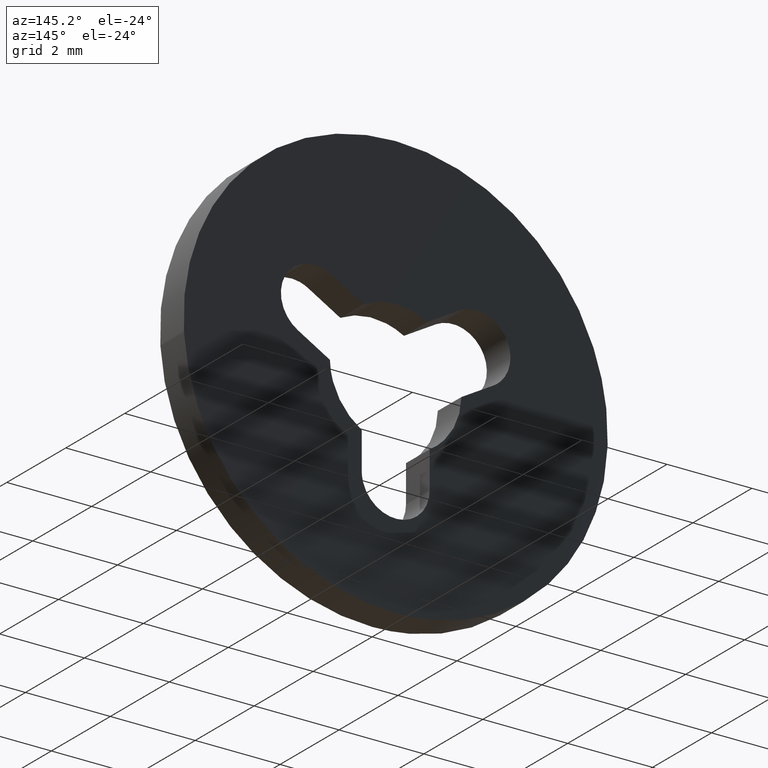
[diagram: clean part render]
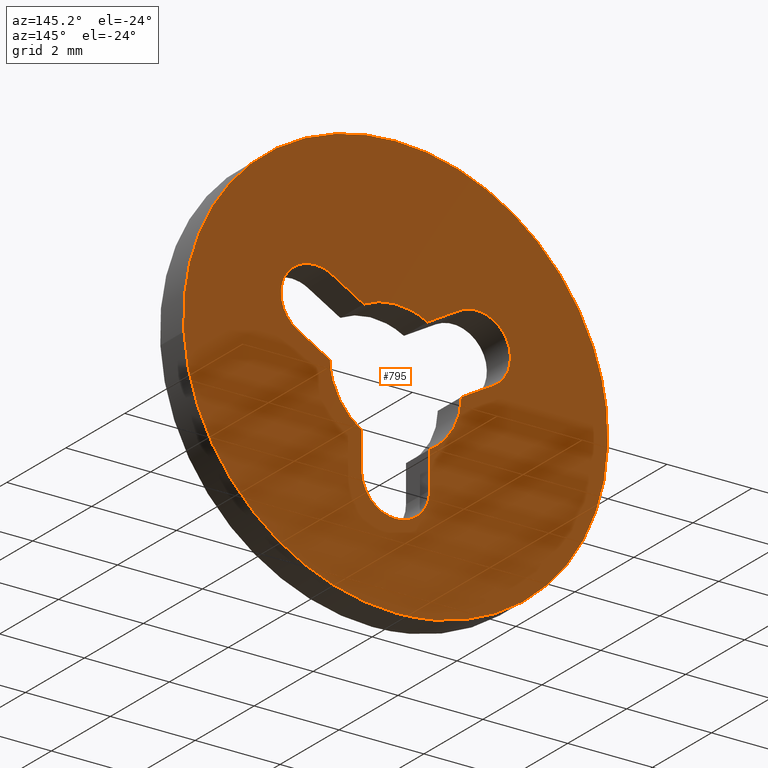
[diagram: same view with one face highlighted and labeled with its STEP entity id]
A machine part, auxiliary view. The second image highlights one B-rep face of the part: STEP entity #795.
In plain terms, the highlighted face is a freeform B-spline surface patch.
Its self-contained STEP definition (entity closure, byte-faithful):
#85=CARTESIAN_POINT('',(-4.965048002999415,0.800000000000023,0.590168050559857));
#86=VERTEX_POINT('',#85);
#92=CARTESIAN_POINT('',(0.0,0.800000000000023,-5.0));
#93=VERTEX_POINT('',#92);
#94=CARTESIAN_POINT('',(-4.965048002999415,0.800000000000023,0.590168050559856));
#95=CARTESIAN_POINT('',(-5.0,0.800000000000023,0.296119020391210));
#96=CARTESIAN_POINT('',(-5.0,0.800000000000023,0.0));
#97=CARTESIAN_POINT('',(-5.000000000000001,0.800000000000023,-5.000000000000001));
#98=CARTESIAN_POINT('',(0.0,0.800000000000023,-5.0));
#106=(BOUNDED_CURVE()B_SPLINE_CURVE(2,(#94,#95,#96,#97,#98),.UNSPECIFIED.,.F.,.U.)B_SPLINE_CURVE_WITH_KNOTS((3,2,3),(0.229562579808786,0.250000000000000,0.500000000000000),.UNSPECIFIED.)CURVE()GEOMETRIC_REPRESENTATION_ITEM()RATIONAL_B_SPLINE_CURVE((0.956026962526900,0.976056072863809,1.0,0.707106781186548,1.0))REPRESENTATION_ITEM(''));
#107=EDGE_CURVE('',#86,#93,#106,.T.);
#109=CARTESIAN_POINT('',(4.990674099992546,0.800000000000023,-0.305240933789139));
#110=VERTEX_POINT('',#109);
#111=CARTESIAN_POINT('',(0.0,0.800000000000023,-5.0));
#112=CARTESIAN_POINT('',(4.703532000033385,0.800000000000023,-5.000000000000001));
#113=CARTESIAN_POINT('',(4.990674099992546,0.800000000000023,-0.305240933789139));
#121=(BOUNDED_CURVE()B_SPLINE_CURVE(2,(#111,#112,#113),.UNSPECIFIED.,.F.,.U.)B_SPLINE_CURVE_WITH_KNOTS((3,3),(0.500000000000000,0.739333023226263),.UNSPECIFIED.)CURVE()GEOMETRIC_REPRESENTATION_ITEM()RATIONAL_B_SPLINE_CURVE((1.0,0.719603921835620,0.976072172374189))REPRESENTATION_ITEM(''));
#122=EDGE_CURVE('',#93,#110,#121,.T.);
#196=CARTESIAN_POINT('',(0.0,0.800000000000023,5.0));
#197=VERTEX_POINT('',#196);
#198=CARTESIAN_POINT('',(4.990674099992546,0.800000000000023,-0.305240933789139));
#199=CARTESIAN_POINT('',(4.999999999999999,0.800000000000023,-0.152762932077514));
#200=CARTESIAN_POINT('',(5.0,0.800000000000023,0.0));
#201=CARTESIAN_POINT('',(5.000000000000001,0.800000000000023,5.000000000000001));
#202=CARTESIAN_POINT('',(0.0,0.800000000000023,5.0));
#210=(BOUNDED_CURVE()B_SPLINE_CURVE(2,(#198,#199,#200,#201,#202),.UNSPECIFIED.,.F.,.U.)B_SPLINE_CURVE_WITH_KNOTS((3,2,3),(0.739333023226263,0.750000000000000,1.0),.UNSPECIFIED.)CURVE()GEOMETRIC_REPRESENTATION_ITEM()RATIONAL_B_SPLINE_CURVE((0.976072172374189,0.987502859350927,1.0,0.707106781186548,1.0))REPRESENTATION_ITEM(''));
#211=EDGE_CURVE('',#110,#197,#210,.T.);
#213=CARTESIAN_POINT('',(0.0,0.800000000000023,5.0));
#214=CARTESIAN_POINT('',(-4.440875442468178,0.800000000000023,5.0));
#215=CARTESIAN_POINT('',(-4.965048002999415,0.800000000000023,0.590168050559856));
#223=(BOUNDED_CURVE()B_SPLINE_CURVE(2,(#213,#214,#215),.UNSPECIFIED.,.F.,.U.)B_SPLINE_CURVE_WITH_KNOTS((3,3),(0.0,0.229562579808786),.UNSPECIFIED.)CURVE()GEOMETRIC_REPRESENTATION_ITEM()RATIONAL_B_SPLINE_CURVE((1.0,0.731050708322738,0.956026962526900))REPRESENTATION_ITEM(''));
#224=EDGE_CURVE('',#197,#86,#223,.T.);
#267=CARTESIAN_POINT('',(1.505200000000000,0.800000000000023,1.792900000000000));
#268=VERTEX_POINT('',#267);
#274=CARTESIAN_POINT('',(2.309794983558780,0.800000000000023,0.409852987198331));
#275=VERTEX_POINT('',#274);
#276=CARTESIAN_POINT('',(2.309794983558779,0.800000000000023,0.409852987198332));
#277=CARTESIAN_POINT('',(2.997732561522572,0.800000000000023,0.813095514915834));
#278=CARTESIAN_POINT('',(2.596752573461200,0.800000000000023,1.502354317187515));
#279=CARTESIAN_POINT('',(2.195772585399829,0.800000000000023,2.191613119459197));
#280=CARTESIAN_POINT('',(1.505200000000001,0.800000000000023,1.792899999999999));
#288=(BOUNDED_CURVE()B_SPLINE_CURVE(2,(#276,#277,#278,#279,#280),.UNSPECIFIED.,.F.,.U.)B_SPLINE_CURVE_WITH_KNOTS((3,2,3),(0.0,0.500000000000000,1.0),.UNSPECIFIED.)CURVE()GEOMETRIC_REPRESENTATION_ITEM()RATIONAL_B_SPLINE_CURVE((1.0,0.708267502221114,1.0,0.708267502221114,1.0))REPRESENTATION_ITEM(''));
#289=EDGE_CURVE('',#275,#268,#288,.T.);
#311=CARTESIAN_POINT('',(0.749639666225095,0.800000000000023,1.356665165330756));
#312=VERTEX_POINT('',#311);
#318=CARTESIAN_POINT('',(0.749639666225095,0.800000000000023,1.356665165330756));
#319=CARTESIAN_POINT('',(1.505200000000000,0.800000000000023,1.792900000000000));
#320=QUASI_UNIFORM_CURVE('',1,(#318,#319),.UNSPECIFIED.,.F.,.U.);
#321=EDGE_CURVE('',#312,#268,#320,.T.);
#356=CARTESIAN_POINT('',(-0.749690762769801,0.800000000000023,1.356636930139244));
#357=VERTEX_POINT('',#356);
#363=CARTESIAN_POINT('',(0.749639666225096,0.800000000000023,1.356665165330756));
#364=CARTESIAN_POINT('',(-0.000033349446036,0.800000000000023,1.770904908199554));
#365=CARTESIAN_POINT('',(-0.749690762769801,0.800000000000023,1.356636930139245));
#373=(BOUNDED_CURVE()B_SPLINE_CURVE(2,(#363,#364,#365),.UNSPECIFIED.,.F.,.U.)CURVE()GEOMETRIC_REPRESENTATION_ITEM()QUASI_UNIFORM_CURVE()RATIONAL_B_SPLINE_CURVE((1.0,0.875258740629394,1.0))REPRESENTATION_ITEM(''));
#374=EDGE_CURVE('',#312,#357,#373,.T.);
#392=CARTESIAN_POINT('',(-1.505300000000000,0.800000000000023,1.792900000000000));
#393=VERTEX_POINT('',#392);
#399=CARTESIAN_POINT('',(-1.505300000000000,0.800000000000023,1.792900000000000));
#400=CARTESIAN_POINT('',(-0.749690762769801,0.800000000000023,1.356636930139244));
#401=QUASI_UNIFORM_CURVE('',1,(#399,#400),.UNSPECIFIED.,.F.,.U.);
#402=EDGE_CURVE('',#393,#357,#401,.T.);
#445=CARTESIAN_POINT('',(-2.300703745775685,0.800000000000023,0.404546279162633));
#446=VERTEX_POINT('',#445);
#452=CARTESIAN_POINT('',(-1.505300000000000,0.800000000000023,1.792900000000000));
#453=CARTESIAN_POINT('',(-1.906346013160948,0.800000000000023,2.024450325533841));
#454=CARTESIAN_POINT('',(-2.306879795074811,0.800000000000023,1.792015071166313));
#455=CARTESIAN_POINT('',(-2.707413576988674,0.800000000000023,1.559579816798786));
#456=CARTESIAN_POINT('',(-2.705352236400295,0.800000000000023,1.096493206322843));
#457=CARTESIAN_POINT('',(-2.703290895811918,0.800000000000023,0.633406595846900));
#458=CARTESIAN_POINT('',(-2.300703745775686,0.800000000000023,0.404546279162634));
#466=(BOUNDED_CURVE()B_SPLINE_CURVE(2,(#452,#453,#454,#455,#456,#457,#458),.UNSPECIFIED.,.F.,.U.)B_SPLINE_CURVE_WITH_KNOTS((3,2,2,3),(0.0,0.333333333333333,0.666666666666667,1.0),.UNSPECIFIED.)CURVE()GEOMETRIC_REPRESENTATION_ITEM()RATIONAL_B_SPLINE_CURVE((1.0,0.865466982010348,1.0,0.865466982010348,1.0,0.865466982010348,1.0))REPRESENTATION_ITEM(''));
#467=EDGE_CURVE('',#393,#446,#466,.T.);
#485=CARTESIAN_POINT('',(-1.549727906457970,0.800000000000023,-0.029041624358724));
#486=VERTEX_POINT('',#485);
#492=CARTESIAN_POINT('',(-1.549727906457970,0.800000000000023,-0.029041624358724));
#493=CARTESIAN_POINT('',(-2.300703745775685,0.800000000000023,0.404546279162633));
#494=QUASI_UNIFORM_CURVE('',1,(#492,#493),.UNSPECIFIED.,.F.,.U.);
#495=EDGE_CURVE('',#486,#446,#494,.T.);
#530=CARTESIAN_POINT('',(-0.799999999999990,0.800000000000023,-1.327591804735182));
#531=VERTEX_POINT('',#530);
#537=CARTESIAN_POINT('',(-1.549727906457971,0.800000000000023,-0.029041624358724));
#538=CARTESIAN_POINT('',(-1.533678385811006,0.800000000000023,-0.885480979287683));
#539=CARTESIAN_POINT('',(-0.799999999999990,0.800000000000023,-1.327591804735181));
#547=(BOUNDED_CURVE()B_SPLINE_CURVE(2,(#537,#538,#539),.UNSPECIFIED.,.F.,.U.)CURVE()GEOMETRIC_REPRESENTATION_ITEM()QUASI_UNIFORM_CURVE()RATIONAL_B_SPLINE_CURVE((1.0,0.875238959213732,1.0))REPRESENTATION_ITEM(''));
#548=EDGE_CURVE('',#486,#531,#547,.T.);
#566=CARTESIAN_POINT('',(-0.800000000000000,0.800000000000023,-2.200000000000000));
#567=VERTEX_POINT('',#566);
#573=CARTESIAN_POINT('',(-0.800000000000000,0.800000000000023,-2.200000000000000));
#574=CARTESIAN_POINT('',(-0.799999999999990,0.800000000000023,-1.327591804735182));
#575=QUASI_UNIFORM_CURVE('',1,(#573,#574),.UNSPECIFIED.,.F.,.U.);
#576=EDGE_CURVE('',#567,#531,#575,.T.);
#617=CARTESIAN_POINT('',(0.800000000000000,0.800000000000023,-2.200000000000000));
#618=VERTEX_POINT('',#617);
#624=CARTESIAN_POINT('',(-0.800000000000000,0.800000000000023,-2.200000000000000));
#625=CARTESIAN_POINT('',(-0.800000000000000,0.800000000000023,-3.0));
#626=CARTESIAN_POINT('',(0.0,0.800000000000023,-3.0));
#627=CARTESIAN_POINT('',(0.800000000000000,0.800000000000023,-3.0));
#628=CARTESIAN_POINT('',(0.800000000000000,0.800000000000023,-2.200000000000000));
#636=(BOUNDED_CURVE()B_SPLINE_CURVE(2,(#624,#625,#626,#627,#628),.UNSPECIFIED.,.F.,.U.)B_SPLINE_CURVE_WITH_KNOTS((3,2,3),(0.0,0.500000000000000,1.0),.UNSPECIFIED.)CURVE()GEOMETRIC_REPRESENTATION_ITEM()RATIONAL_B_SPLINE_CURVE((1.0,0.707106781186548,1.0,0.707106781186548,1.0))REPRESENTATION_ITEM(''));
#637=EDGE_CURVE('',#567,#618,#636,.T.);
#655=CARTESIAN_POINT('',(0.800000000000000,0.800000000000023,-1.327591804735178));
#656=VERTEX_POINT('',#655);
#662=CARTESIAN_POINT('',(0.800000000000000,0.800000000000023,-1.327591804735178));
#663=CARTESIAN_POINT('',(0.800000000000000,0.800000000000023,-2.200000000000000));
#664=QUASI_UNIFORM_CURVE('',1,(#662,#663),.UNSPECIFIED.,.F.,.U.);
#665=EDGE_CURVE('',#656,#618,#664,.T.);
#700=CARTESIAN_POINT('',(1.549728999154675,0.800000000000023,-0.028983256874563));
#701=VERTEX_POINT('',#700);
#707=CARTESIAN_POINT('',(0.799999999999998,0.800000000000023,-1.327591804735176));
#708=CARTESIAN_POINT('',(1.533711022130222,0.800000000000023,-0.885461312809412));
#709=CARTESIAN_POINT('',(1.549728999154673,0.800000000000023,-0.028983256874563));
#717=(BOUNDED_CURVE()B_SPLINE_CURVE(2,(#707,#708,#709),.UNSPECIFIED.,.F.,.U.)CURVE()GEOMETRIC_REPRESENTATION_ITEM()QUASI_UNIFORM_CURVE()RATIONAL_B_SPLINE_CURVE((1.0,0.875229850426156,1.0))REPRESENTATION_ITEM(''));
#718=EDGE_CURVE('',#656,#701,#717,.T.);
#735=CARTESIAN_POINT('',(2.309794983558780,0.800000000000023,0.409852987198331));
#736=CARTESIAN_POINT('',(1.549728999154675,0.800000000000023,-0.028983256874563));
#737=QUASI_UNIFORM_CURVE('',1,(#735,#736),.UNSPECIFIED.,.F.,.U.);
#738=EDGE_CURVE('',#275,#701,#737,.T.);
#770=CARTESIAN_POINT('',(-5.499409322677554,0.800000000000000,5.499499980618060));
#771=CARTESIAN_POINT('',(5.499378298459947,0.800000000000000,5.499499980618060));
#772=CARTESIAN_POINT('',(-5.499409322677554,0.800000000000000,-5.499500248838961));
#773=CARTESIAN_POINT('',(5.499378298459947,0.800000000000000,-5.499500248838961));
#774=B_SPLINE_SURFACE_WITH_KNOTS('',1,1,((#770,#772),(#771,#773)),.UNSPECIFIED.,.F.,.F.,.U.,(2,2),(2,2),(0.0,10.998787621137501),(0.0,10.999000229457019),.UNSPECIFIED.);
#775=ORIENTED_EDGE('',*,*,#211,.F.);
#776=ORIENTED_EDGE('',*,*,#122,.F.);
#777=ORIENTED_EDGE('',*,*,#107,.F.);
#778=ORIENTED_EDGE('',*,*,#224,.F.);
#779=EDGE_LOOP('',(#775,#776,#777,#778));
#780=FACE_OUTER_BOUND('',#779,.T.);
#781=ORIENTED_EDGE('',*,*,#738,.F.);
#782=ORIENTED_EDGE('',*,*,#289,.T.);
#783=ORIENTED_EDGE('',*,*,#321,.F.);
#784=ORIENTED_EDGE('',*,*,#374,.T.);
#785=ORIENTED_EDGE('',*,*,#402,.F.);
#786=ORIENTED_EDGE('',*,*,#467,.T.);
#787=ORIENTED_EDGE('',*,*,#495,.F.);
#788=ORIENTED_EDGE('',*,*,#548,.T.);
#789=ORIENTED_EDGE('',*,*,#576,.F.);
#790=ORIENTED_EDGE('',*,*,#637,.T.);
#791=ORIENTED_EDGE('',*,*,#665,.F.);
#792=ORIENTED_EDGE('',*,*,#718,.T.);
#793=EDGE_LOOP('',(#781,#782,#783,#784,#785,#786,#787,#788,#789,#790,#791,#792));
#794=FACE_BOUND('',#793,.T.);
#795=ADVANCED_FACE('',(#780,#794),#774,.T.);